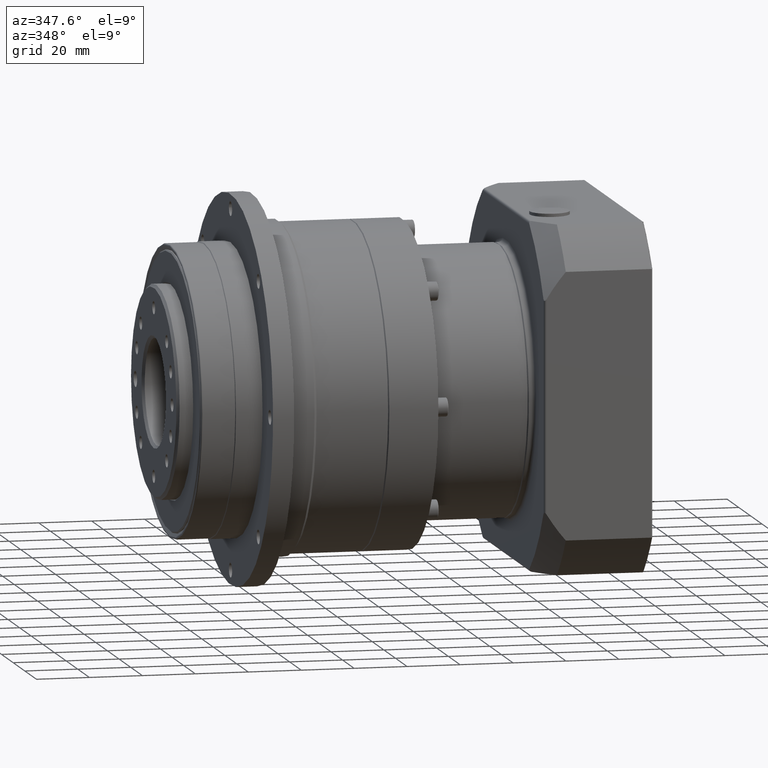
[diagram: clean part render]
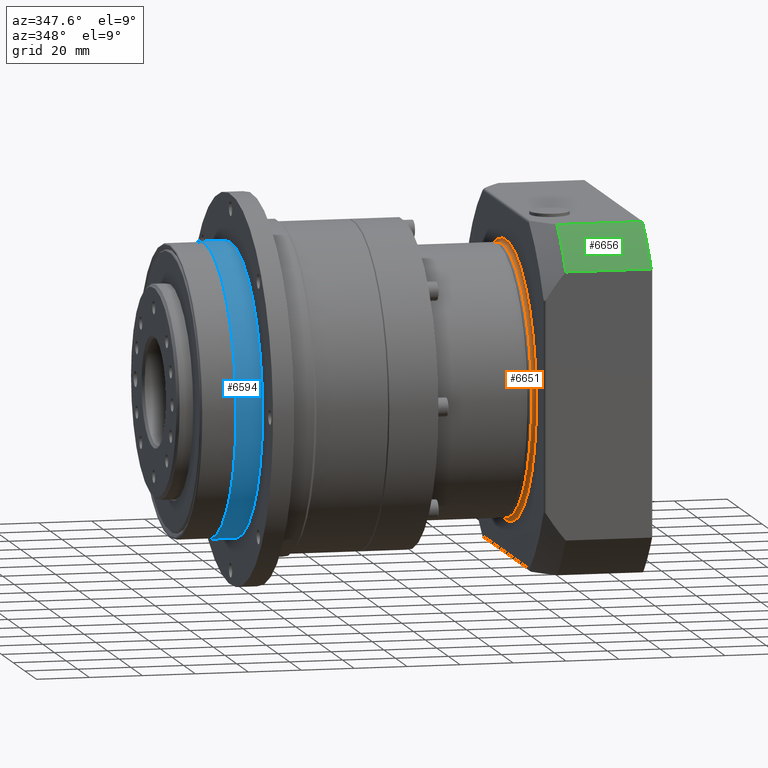
[diagram: same view with three faces highlighted in distinct colors, each labeled with its STEP entity id]
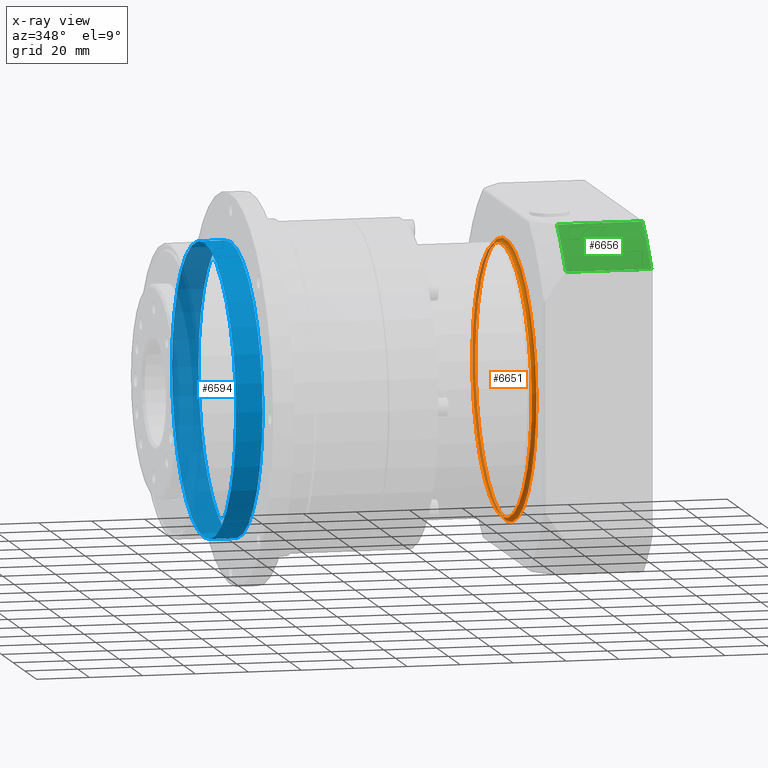
[diagram: x-ray of the same camera — body ghosted, the three highlighted faces saturated]
A machine part, auxiliary view with three faces highlighted in distinct colors.
The next image is the same camera in x-ray (body ghosted, the three faces saturated) — at least one of them is partly hidden behind the body in this view.
Their STEP definitions:

[orange] entity #6651 — the highlighted toroidal blend (fillet) surface has major radius 52.5 mm and minor (blend) radius 1.5 mm.
#714=TOROIDAL_SURFACE('',#7432,52.5,1.5);
#1279=FACE_BOUND('',#2380,.T.);
#1679=FACE_OUTER_BOUND('',#2379,.T.);
#2379=EDGE_LOOP('',(#5371));
#2380=EDGE_LOOP('',(#5372));
#2884=CIRCLE('',#7425,51.);
#2889=CIRCLE('',#7431,52.5);
#3401=VERTEX_POINT('',#11318);
#3404=VERTEX_POINT('',#11328);
#4106=EDGE_CURVE('',#3401,#3401,#2884,.T.);
#4112=EDGE_CURVE('',#3404,#3404,#2889,.T.);
#5371=ORIENTED_EDGE('',*,*,#4106,.T.);
#5372=ORIENTED_EDGE('',*,*,#4112,.T.);
#6651=ADVANCED_FACE('',(#1679,#1279),#714,.F.);
#7425=AXIS2_PLACEMENT_3D('',#11319,#9034,#9035);
#7431=AXIS2_PLACEMENT_3D('',#11329,#9047,#9048);
#7432=AXIS2_PLACEMENT_3D('',#11330,#9049,#9050);
#9034=DIRECTION('center_axis',(1.,9.76631733469955E-15,9.03213527489685E-15));
#9035=DIRECTION('ref_axis',(-9.03213527558065E-15,7.00162378316795E-11,
1.));
#9047=DIRECTION('center_axis',(-1.,-9.76631733469955E-15,-9.03213527489685E-15));
#9048=DIRECTION('ref_axis',(-9.03213527558065E-15,7.00162378316795E-11,
1.));
#9049=DIRECTION('center_axis',(1.,9.76631733469955E-15,9.03213527489685E-15));
#9050=DIRECTION('ref_axis',(-9.07915717915684E-15,7.00160916898716E-11,
1.));
#11318=CARTESIAN_POINT('',(34.8083725161934,-82.5168586350811,22.499100741267));
#11319=CARTESIAN_POINT('Origin',(34.8083725161929,-82.5168586315103,73.499100741267));
#11328=CARTESIAN_POINT('',(36.3083725161934,-82.5168586351861,20.999100741267));
#11329=CARTESIAN_POINT('Origin',(36.3083725161929,-82.5168586315103,73.499100741267));
#11330=CARTESIAN_POINT('Origin',(34.8083725161929,-82.5168586315103,73.499100741267));

[blue] entity #6594 — the highlighted cylindrical surface (bore or boss wall) has radius 55 mm, axis along (1, 0, 0).
#1212=FACE_BOUND('',#2256,.T.);
#1622=FACE_OUTER_BOUND('',#2255,.T.);
#2255=EDGE_LOOP('',(#5185));
#2256=EDGE_LOOP('',(#5186));
#2828=CIRCLE('',#7313,55.);
#2829=CIRCLE('',#7315,55.);
#3324=VERTEX_POINT('',#10845);
#3325=VERTEX_POINT('',#10848);
#4015=EDGE_CURVE('',#3324,#3324,#2828,.T.);
#4016=EDGE_CURVE('',#3325,#3325,#2829,.T.);
#5185=ORIENTED_EDGE('',*,*,#4015,.T.);
#5186=ORIENTED_EDGE('',*,*,#4016,.F.);
#5920=CYLINDRICAL_SURFACE('',#7314,55.);
#6594=ADVANCED_FACE('',(#1622,#1212),#5920,.T.);
#7313=AXIS2_PLACEMENT_3D('',#10846,#8790,#8791);
#7314=AXIS2_PLACEMENT_3D('',#10847,#8792,#8793);
#7315=AXIS2_PLACEMENT_3D('',#10849,#8794,#8795);
#8790=DIRECTION('center_axis',(1.,1.66533453688182E-16,1.09105421218123E-14));
#8791=DIRECTION('ref_axis',(1.09105421218239E-14,-7.00103800415781E-11,
-1.));
#8792=DIRECTION('center_axis',(1.,1.66533453688182E-16,1.09105421218123E-14));
#8793=DIRECTION('ref_axis',(-1.6653345292433E-16,1.,-7.00103800415781E-11));
#8794=DIRECTION('center_axis',(1.,1.66533453688182E-16,1.09105421218123E-14));
#8795=DIRECTION('ref_axis',(1.09105421218239E-14,-7.00103800415781E-11,
-1.));
#10845=CARTESIAN_POINT('',(-77.691627483807,-27.5168586315023,73.4991007374109));
#10846=CARTESIAN_POINT('Origin',(-77.691627483807,-82.5168586315023,73.4991007412615));
#10847=CARTESIAN_POINT('Origin',(-72.691627483807,-82.5168586315023,73.4991007412615));
#10848=CARTESIAN_POINT('',(-67.691627483807,-27.5168586315023,73.499100737411));
#10849=CARTESIAN_POINT('Origin',(-67.691627483807,-82.5168586315023,73.4991007412616));

[green] entity #6656 — the highlighted cylindrical surface (partial cylindrical patch) has radius 82.5 mm, axis along (-1, -0, -0).
#312=LINE('',#11034,#589);
#317=LINE('',#11175,#594);
#589=VECTOR('',#8974,32.2644831780048);
#594=VECTOR('',#9009,32.2644831780048);
#1684=FACE_OUTER_BOUND('',#2385,.T.);
#2385=EDGE_LOOP('',(#5391,#5392,#5393,#5394));
#2876=CIRCLE('',#7405,82.5);
#2894=CIRCLE('',#7442,82.5);
#3378=VERTEX_POINT('',#11031);
#3379=VERTEX_POINT('',#11033);
#3382=VERTEX_POINT('',#11040);
#3388=VERTEX_POINT('',#11173);
#4069=EDGE_CURVE('',#3378,#3379,#312,.T.);
#4075=EDGE_CURVE('',#3382,#3378,#2876,.T.);
#4088=EDGE_CURVE('',#3388,#3382,#317,.T.);
#4122=EDGE_CURVE('',#3388,#3379,#2894,.T.);
#5391=ORIENTED_EDGE('',*,*,#4122,.T.);
#5392=ORIENTED_EDGE('',*,*,#4069,.F.);
#5393=ORIENTED_EDGE('',*,*,#4075,.F.);
#5394=ORIENTED_EDGE('',*,*,#4088,.F.);
#5950=CYLINDRICAL_SURFACE('',#7441,82.5);
#6656=ADVANCED_FACE('',(#1684),#5950,.T.);
#7405=AXIS2_PLACEMENT_3D('',#11071,#8983,#8984);
#7441=AXIS2_PLACEMENT_3D('',#11384,#9070,#9071);
#7442=AXIS2_PLACEMENT_3D('',#11385,#9072,#9073);
#8974=DIRECTION('',(-1.,-9.76631733469955E-15,-9.03213527489685E-15));
#8983=DIRECTION('center_axis',(1.,9.76631733469955E-15,9.03213527489685E-15));
#8984=DIRECTION('ref_axis',(5.19145112181305E-16,-0.707106781137039,0.707106781236057));
#9009=DIRECTION('',(1.,9.76631733469955E-15,9.03213527489685E-15));
#9070=DIRECTION('center_axis',(-1.,-9.76631733469955E-15,-9.03213527489685E-15));
#9071=DIRECTION('ref_axis',(9.03213527558065E-15,-7.00162378316795E-11,
-1.));
#9072=DIRECTION('center_axis',(1.,9.76631733469955E-15,9.03213527489685E-15));
#9073=DIRECTION('ref_axis',(9.03213527558065E-15,-7.00162378316795E-11,
-1.));
#11031=CARTESIAN_POINT('',(76.8083725161931,-148.016858627998,123.658845561791));
#11033=CARTESIAN_POINT('',(44.5438893381883,-148.016858627998,123.658845561791));
#11034=CARTESIAN_POINT('',(77.3083725161931,-148.016858627998,123.658845561791));
#11040=CARTESIAN_POINT('',(76.8083725161928,-132.676603442862,138.999100744779));
#11071=CARTESIAN_POINT('Origin',(76.8083725161929,-82.5168586315099,73.4991007412673));
#11173=CARTESIAN_POINT('',(44.543889338188,-132.676603442862,138.999100744779));
#11175=CARTESIAN_POINT('',(77.3083725161928,-132.676603442862,138.999100744779));
#11384=CARTESIAN_POINT('Origin',(77.3083725161929,-82.5168586315099,73.4991007412674));
#11385=CARTESIAN_POINT('Origin',(44.5438893381881,-82.5168586315102,73.4991007412671));